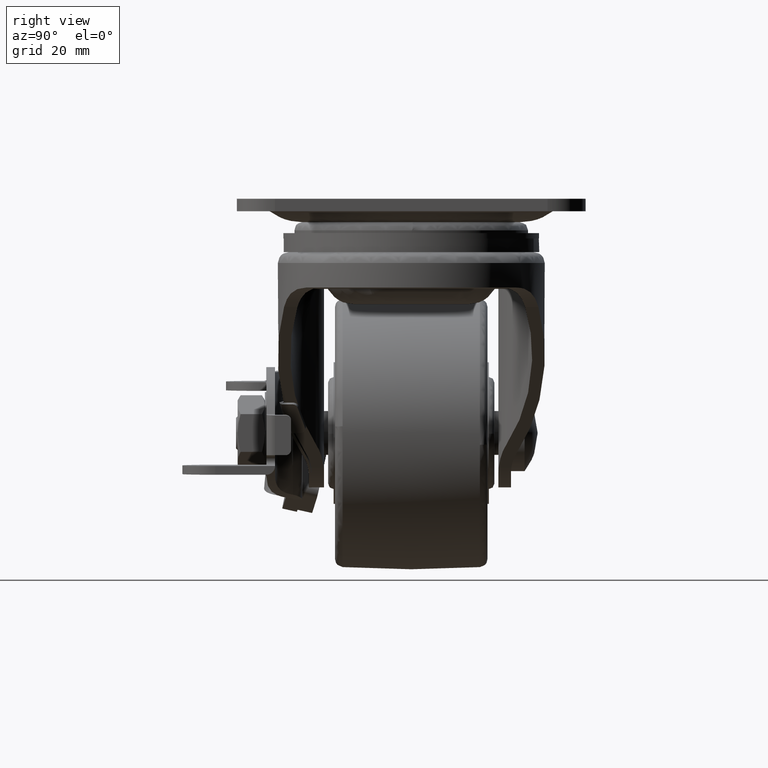
[diagram: clean part render]
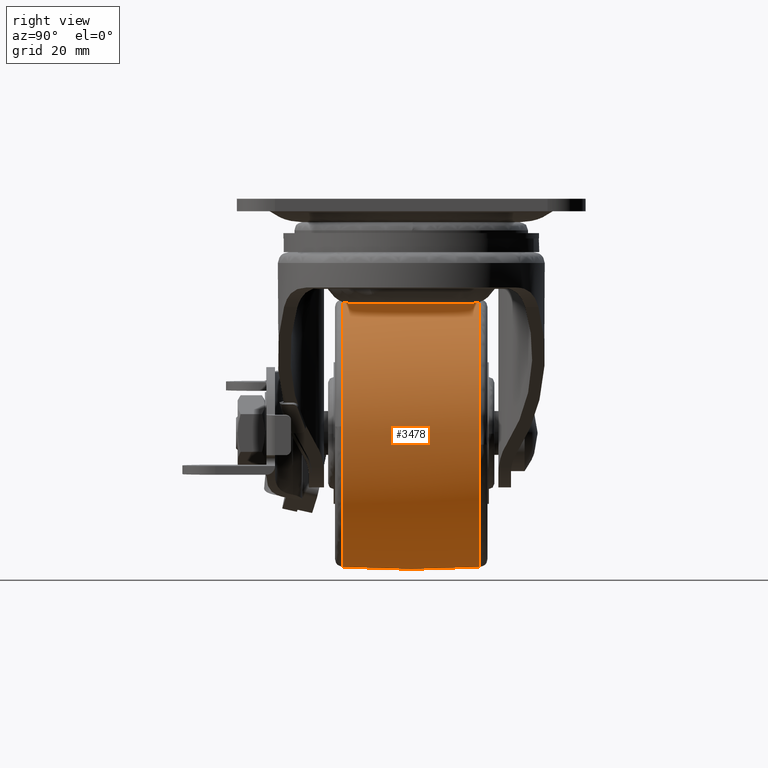
[diagram: same view with one face highlighted and labeled with its STEP entity id]
A machine part, right view. The second image highlights one B-rep face of the part: STEP entity #3478.
In plain terms, the highlighted face is a freeform B-spline surface patch.
Its self-contained STEP definition (entity closure, byte-faithful):
#3255=CARTESIAN_POINT('',(-25.0,12.594468120877840,-18.396945482409748));
#3256=VERTEX_POINT('',#3255);
#3270=CARTESIAN_POINT('',(-0.492070208242240,12.594468164190250,-45.161407804632837));
#3271=VERTEX_POINT('',#3270);
#3272=CARTESIAN_POINT('',(-0.492070208242239,12.594468164190252,-45.161407804632830));
#3273=CARTESIAN_POINT('',(-0.396945169999889,12.594468163314490,-44.082797148069410));
#3274=CARTESIAN_POINT('',(-0.396945163295360,12.594468162358620,-42.999999974253882));
#3275=CARTESIAN_POINT('',(-0.396945010956685,12.594468140639689,-18.396945470107383));
#3276=CARTESIAN_POINT('',(-25.0,12.594468120877840,-18.396945482409748));
#3284=(BOUNDED_CURVE()B_SPLINE_CURVE(2,(#3272,#3273,#3274,#3275,#3276),.UNSPECIFIED.,.F.,.U.)B_SPLINE_CURVE_WITH_KNOTS((3,2,3),(0.234718454484241,0.250000000000000,0.500000000000000),.UNSPECIFIED.)CURVE()GEOMETRIC_REPRESENTATION_ITEM()RATIONAL_B_SPLINE_CURVE((0.966381849945236,0.982096555781780,1.0,0.707106781186548,1.0))REPRESENTATION_ITEM(''));
#3285=EDGE_CURVE('',#3271,#3256,#3284,.T.);
#3342=CARTESIAN_POINT('',(-25.0,12.594468121152911,-67.603054517572872));
#3343=VERTEX_POINT('',#3342);
#3344=CARTESIAN_POINT('',(-25.0,12.594468121152911,-67.603054517572872));
#3345=CARTESIAN_POINT('',(-2.471247943120502,12.594468142734303,-67.603054504137788));
#3346=CARTESIAN_POINT('',(-0.492070208242239,12.594468164190252,-45.161407804632830));
#3354=(BOUNDED_CURVE()B_SPLINE_CURVE(2,(#3344,#3345,#3346),.UNSPECIFIED.,.F.,.U.)B_SPLINE_CURVE_WITH_KNOTS((3,3),(0.0,0.234718454484241),.UNSPECIFIED.)CURVE()GEOMETRIC_REPRESENTATION_ITEM()RATIONAL_B_SPLINE_CURVE((1.0,0.725010225404768,0.966381849945236))REPRESENTATION_ITEM(''));
#3355=EDGE_CURVE('',#3343,#3271,#3354,.T.);
#3391=CARTESIAN_POINT('',(-25.000000000000004,-13.849773067866893,-67.519883184530258));
#3392=CARTESIAN_POINT('',(-25.000000000000004,-0.000003081674017,-68.481271935813339));
#3393=CARTESIAN_POINT('',(-25.0,13.849766934074607,-67.519883610310416));
#3394=CARTESIAN_POINT('',(-0.480116815469742,-13.849773067866893,-67.519883184530258));
#3395=CARTESIAN_POINT('',(0.481271935813357,-0.000003081674014,-68.481271935813368));
#3396=CARTESIAN_POINT('',(-0.480116389689563,13.849766934074605,-67.519883610310430));
#3397=CARTESIAN_POINT('',(-0.480116815469746,-13.849773067866893,-43.0));
#3398=CARTESIAN_POINT('',(0.481271935813357,-0.000003081674017,-43.0));
#3399=CARTESIAN_POINT('',(-0.480116389689563,13.849766934074607,-42.999999999999993));
#3400=CARTESIAN_POINT('',(-0.480116815469735,-13.849773067866893,-18.480116815469746));
#3401=CARTESIAN_POINT('',(0.481271935813364,-0.000003081674014,-17.518728064186657));
#3402=CARTESIAN_POINT('',(-0.480116389689556,13.849766934074605,-18.480116389689567));
#3403=CARTESIAN_POINT('',(-25.000000000000004,-13.849773067866893,-18.480116815469749));
#3404=CARTESIAN_POINT('',(-25.000000000000004,-0.000003081674017,-17.518728064186650));
#3405=CARTESIAN_POINT('',(-25.0,13.849766934074607,-18.480116389689563));
#3413=(BOUNDED_SURFACE()B_SPLINE_SURFACE(2,2,((#3391,#3394,#3397,#3400,#3403),(#3392,#3395,#3398,#3401,#3404),(#3393,#3396,#3399,#3402,#3405)),.UNSPECIFIED.,.F.,.F.,.U.)B_SPLINE_SURFACE_WITH_KNOTS((3,3),(3,2,3),(0.0,27.732827479214620),(0.0,41.421356237309503,82.842712474619006),.UNSPECIFIED.)GEOMETRIC_REPRESENTATION_ITEM()RATIONAL_B_SPLINE_SURFACE(((0.938626626066555,0.663709252293911,0.938626626066555,0.663709252293911,0.938626626066555),(0.936373374433606,0.662115962784533,0.936373374433606,0.662115962784533,0.936373374433606),(0.938626625066233,0.663709251586577,0.938626625066233,0.663709251586577,0.938626625066233)))REPRESENTATION_ITEM('')SURFACE());
#3414=CARTESIAN_POINT('',(-25.0,-12.594471721591740,-67.603054290393686));
#3415=VERTEX_POINT('',#3414);
#3416=CARTESIAN_POINT('',(-24.999999999999996,-12.594471721591747,-67.603054290393686));
#3417=CARTESIAN_POINT('',(-25.000000000000004,-0.000001807386638,-68.397734991783238));
#3418=CARTESIAN_POINT('',(-25.000000000000004,12.594468121152937,-67.603054517573128));
#3426=(BOUNDED_CURVE()B_SPLINE_CURVE(2,(#3416,#3417,#3418),.UNSPECIFIED.,.F.,.U.)B_SPLINE_CURVE_WITH_KNOTS((3,3),(0.438966708702184,0.561033273815254),.UNSPECIFIED.)CURVE()GEOMETRIC_REPRESENTATION_ITEM()RATIONAL_B_SPLINE_CURVE((0.938431265661661,0.936568734605093,0.938431265128152))REPRESENTATION_ITEM(''));
#3427=EDGE_CURVE('',#3415,#3343,#3426,.T.);
#3428=ORIENTED_EDGE('',*,*,#3427,.T.);
#3429=ORIENTED_EDGE('',*,*,#3355,.T.);
#3430=ORIENTED_EDGE('',*,*,#3285,.T.);
#3431=CARTESIAN_POINT('',(-25.0,-12.594465079745850,-18.396945290521831));
#3432=VERTEX_POINT('',#3431);
#3433=CARTESIAN_POINT('',(-25.000000000000007,-12.594465079745847,-18.396945290521824));
#3434=CARTESIAN_POINT('',(-24.999999999999993,0.000001526619824,-17.602265218601900));
#3435=CARTESIAN_POINT('',(-25.0,12.594468120877854,-18.396945482409510));
#3443=(BOUNDED_CURVE()B_SPLINE_CURVE(2,(#3433,#3434,#3435),.UNSPECIFIED.,.F.,.U.)B_SPLINE_CURVE_WITH_KNOTS((3,3),(0.438966740952832,0.561033273813918),.UNSPECIFIED.)CURVE()GEOMETRIC_REPRESENTATION_ITEM()RATIONAL_B_SPLINE_CURVE((0.938431264677480,0.936568735097205,0.938431265128111))REPRESENTATION_ITEM(''));
#3444=EDGE_CURVE('',#3432,#3256,#3443,.T.);
#3445=ORIENTED_EDGE('',*,*,#3444,.F.);
#3446=CARTESIAN_POINT('',(-0.428019900699162,-12.594468214582340,-41.763836285169553));
#3447=VERTEX_POINT('',#3446);
#3448=CARTESIAN_POINT('',(-0.428019900699162,-12.594468214582339,-41.763836285169546));
#3449=CARTESIAN_POINT('',(-1.603557866599153,-12.594465070131360,-18.396945298367719));
#3450=CARTESIAN_POINT('',(-25.0,-12.594465079745850,-18.396945290521831));
#3458=(BOUNDED_CURVE()B_SPLINE_CURVE(2,(#3448,#3449,#3450),.UNSPECIFIED.,.F.,.U.)B_SPLINE_CURVE_WITH_KNOTS((3,3),(0.258796047027014,0.500000000000000),.UNSPECIFIED.)CURVE()GEOMETRIC_REPRESENTATION_ITEM()RATIONAL_B_SPLINE_CURVE((0.980114740689134,0.717411991292854,1.0))REPRESENTATION_ITEM(''));
#3459=EDGE_CURVE('',#3447,#3432,#3458,.T.);
#3460=ORIENTED_EDGE('',*,*,#3459,.F.);
#3461=CARTESIAN_POINT('',(-25.0,-12.594471721591740,-67.603054290393686));
#3462=CARTESIAN_POINT('',(-0.396945019770914,-12.594471712448785,-67.603054297854797));
#3463=CARTESIAN_POINT('',(-0.396945175728700,-12.594468381911350,-42.999999805764773));
#3464=CARTESIAN_POINT('',(-0.396945179649169,-12.594468298188202,-42.381527466883121));
#3465=CARTESIAN_POINT('',(-0.428019900699162,-12.594468214582339,-41.763836285169546));
#3473=(BOUNDED_CURVE()B_SPLINE_CURVE(2,(#3461,#3462,#3463,#3464,#3465),.UNSPECIFIED.,.F.,.U.)B_SPLINE_CURVE_WITH_KNOTS((3,2,3),(0.0,0.250000000000000,0.258796047027014),.UNSPECIFIED.)CURVE()GEOMETRIC_REPRESENTATION_ITEM()RATIONAL_B_SPLINE_CURVE((1.0,0.707106781186548,1.0,0.989694789893694,0.980114740689134))REPRESENTATION_ITEM(''));
#3474=EDGE_CURVE('',#3415,#3447,#3473,.T.);
#3475=ORIENTED_EDGE('',*,*,#3474,.F.);
#3476=EDGE_LOOP('',(#3428,#3429,#3430,#3445,#3460,#3475));
#3477=FACE_OUTER_BOUND('',#3476,.T.);
#3478=ADVANCED_FACE('',(#3477),#3413,.T.);